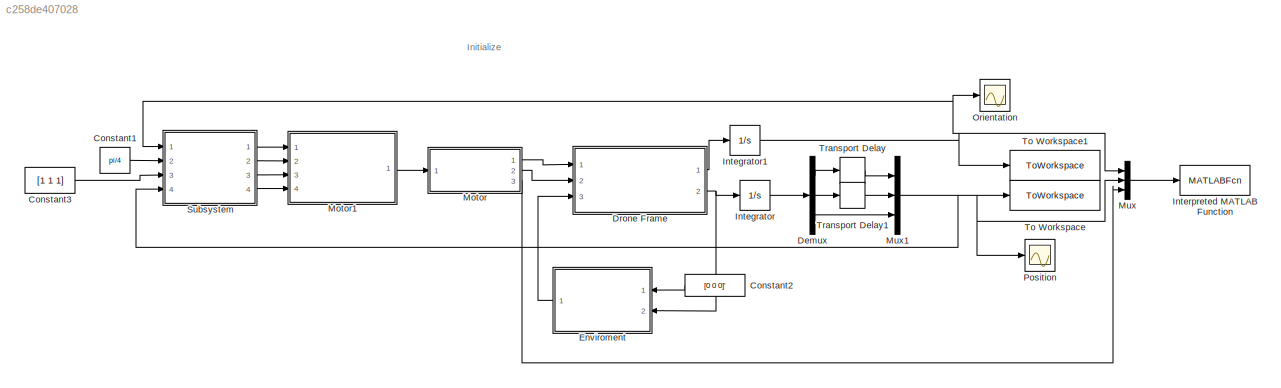
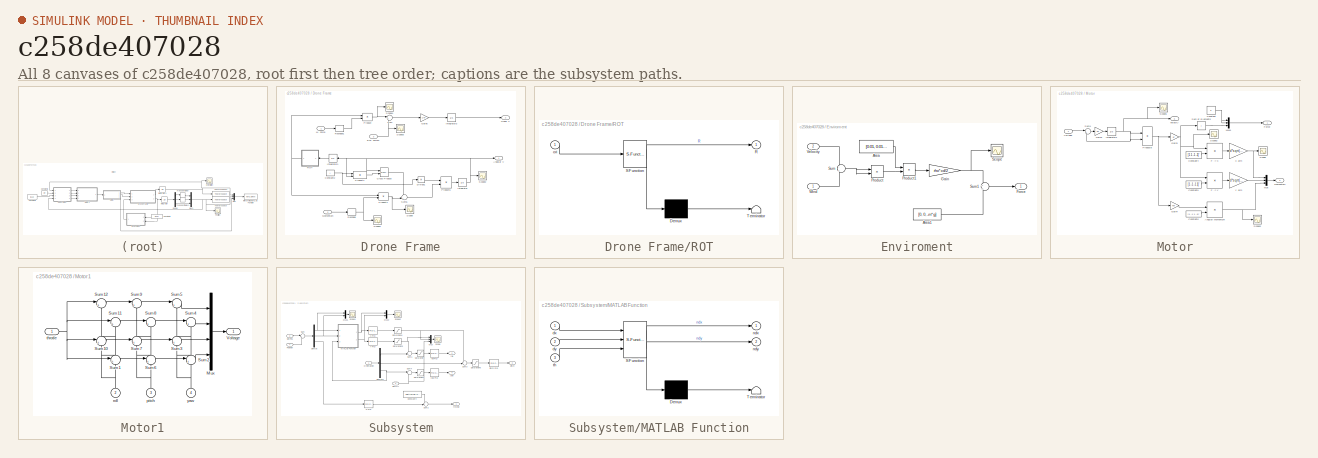
[diagram: thumbnail index - all 8 canvases of the model, root first then tree order]
MODEL slx_c258de407028
KIND model
CONFIG AbsTol = auto
CONFIG EnableMultiTasking = off
CONFIG FixedStep = auto
CONFIG MaxStep = auto
CONFIG MinStep = auto
CONFIG RelTol = 1e-3
CONFIG SampleTimeConstraint = Unconstrained
CONFIG SolverName = VariableStepAuto
CONFIG StartTime = 0.0
CONFIG StopTime = 30
BLOCK [Constant] Constant1
  Value = pi/4
BLOCK [Constant] Constant2
  Value = [0 0 0]'
  VectorParams1D = off
BLOCK [Constant] Constant3
  Value = [1 1 1]
BLOCK [Demux] Demux
  Outputs = 3
  Ports = [1, 3]
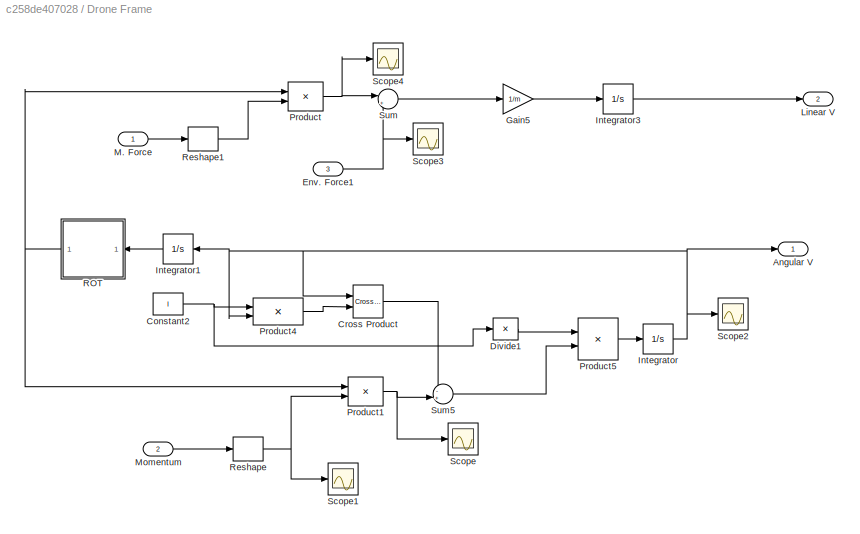
BLOCK [SubSystem] Drone Frame
  Ports = [3, 2]
  RequestExecContextInheritance = off
BLOCK [Outport] Drone Frame/Angular V
BLOCK [Constant] Drone Frame/Constant2
  Value = I
BLOCK [Reference] Drone Frame/Cross Product  REF=vrlib/Utilities/Cross Product
  Ports = [2, 1]
  SourceBlock = vrlib/Utilities/Cross Product
  SourceProductBaseCode = SL
  SourceType = Cross Product
BLOCK [Product] Drone Frame/Divide1
  Inputs = /
  Multiplication = Matrix(*)
  Ports = [1, 1]
BLOCK [Inport] Drone Frame/Env. Force1
  Port = 3
BLOCK [Gain] Drone Frame/Gain5
  Gain = 1/m
BLOCK [Integrator] Drone Frame/Integrator
  Ports = [1, 1]
BLOCK [Integrator] Drone Frame/Integrator1
  Ports = [1, 1]
BLOCK [Integrator] Drone Frame/Integrator3
  Ports = [1, 1]
BLOCK [Outport] Drone Frame/Linear V
  Port = 2
BLOCK [Inport] Drone Frame/M. Force
BLOCK [Inport] Drone Frame/Momentum
  Port = 2
BLOCK [Product] Drone Frame/Product
  Multiplication = Matrix(*)
  Ports = [2, 1]
BLOCK [Product] Drone Frame/Product1
  Multiplication = Matrix(*)
  Ports = [2, 1]
BLOCK [Product] Drone Frame/Product4
  Multiplication = Matrix(*)
  Ports = [2, 1]
BLOCK [Product] Drone Frame/Product5
  Multiplication = Matrix(*)
  Ports = [2, 1]
BLOCK [SubSystem] Drone Frame/ROT
  ErrorFcn = Stateflow.Translate.translate
  PermitHierarchicalResolution = ExplicitOnly
  Ports = [1, 1]
  RequestExecContextInheritance = off
  SFBlockType = MATLAB Function
  TreatAsAtomicUnit = on
BLOCK [Demux] Drone Frame/ROT/ Demux 
  Outputs = 1
  Ports = [1, 1]
BLOCK [S-Function] Drone Frame/ROT/ SFunction 
  EnableBusSupport = on
  FunctionName = sf_sfun
  PortCounts = [1 2]
  Ports = [1, 2]
  SFcnIsStateOwnerBlock = off
  SFunctionDeploymentMode = off
  Tag = Stateflow S-Function 1
BLOCK [Terminator] Drone Frame/ROT/ Terminator 
BLOCK [Outport] Drone Frame/ROT/R
BLOCK [Inport] Drone Frame/ROT/ori
BLOCK [Reshape] Drone Frame/Reshape
  OutputDimensionality = Column vector (2-D)
  Ports = [1, 1]
BLOCK [Reshape] Drone Frame/Reshape1
  OutputDimensionality = Column vector (2-D)
  Ports = [1, 1]
BLOCK [Scope] Drone Frame/Scope
  Floating = off
  NumInputPorts = 1
  Ports = [1]
  ScopeSpecificationString = Simulink.scopes.TimeScopeBlockCfg('CurrentConfiguration', extmgr.ConfigurationSet(extmgr.Configuration('Core','General UI',true),extmgr.Configuration('Core','Source UI',true),extmgr.Configuration('Sources','WiredSimulink',true,'DataLoggingVariableName','ScopeData6'),extmgr.Configuration('Visuals','Time Domain',true,'SerializedDisplays',{struct('MinYLimReal','-1.00000','MaxYLimReal','1.00000','YLab...<+1448ch>
BLOCK [Scope] Drone Frame/Scope1
  Floating = off
  NumInputPorts = 1
  Ports = [1]
  ScopeSpecificationString = Simulink.scopes.TimeScopeBlockCfg('CurrentConfiguration', extmgr.ConfigurationSet(extmgr.Configuration('Core','General UI',true),extmgr.Configuration('Core','Source UI',true),extmgr.Configuration('Sources','WiredSimulink',true,'DataLoggingVariableName','ScopeData7'),extmgr.Configuration('Visuals','Time Domain',true,'SerializedDisplays',{struct('MinYLimReal','-1.00000','MaxYLimReal','1.00000','YLab...<+1420ch>
BLOCK [Scope] Drone Frame/Scope2
  Floating = off
  NumInputPorts = 1
  Ports = [1]
  ScopeSpecificationString = Simulink.scopes.TimeScopeBlockCfg('CurrentConfiguration', extmgr.ConfigurationSet(extmgr.Configuration('Core','General UI',true),extmgr.Configuration('Core','Source UI',true),extmgr.Configuration('Sources','WiredSimulink',true,'DataLoggingVariableName','ScopeData8'),extmgr.Configuration('Visuals','Time Domain',true,'SerializedDisplays',{struct('MinYLimReal','-1.00000','MaxYLimReal','1.00000','YLab...<+1454ch>
BLOCK [Scope] Drone Frame/Scope3
  Floating = off
  NumInputPorts = 1
  Ports = [1]
  ScopeSpecificationString = Simulink.scopes.TimeScopeBlockCfg('CurrentConfiguration', extmgr.ConfigurationSet(extmgr.Configuration('Core','General UI',true),extmgr.Configuration('Core','Source UI',true),extmgr.Configuration('Sources','WiredSimulink',true,'DataLoggingVariableName','ScopeData9'),extmgr.Configuration('Visuals','Time Domain',true,'SerializedDisplays',{struct('MinYLimReal','-16.54017','MaxYLimReal','1.8623','YLab...<+1460ch>
BLOCK [Scope] Drone Frame/Scope4
  Floating = off
  NumInputPorts = 1
  Ports = [1]
  ScopeSpecificationString = Simulink.scopes.TimeScopeBlockCfg('CurrentConfiguration', extmgr.ConfigurationSet(extmgr.Configuration('Core','General UI',true),extmgr.Configuration('Core','Source UI',true),extmgr.Configuration('Sources','WiredSimulink',true,'DataLoggingVariableName','ScopeData10'),extmgr.Configuration('Visuals','Time Domain',true,'SerializedDisplays',{struct('MinYLimReal','-6.25644','MaxYLimReal','56.30799','YL...<+1450ch>
BLOCK [Sum] Drone Frame/Sum
  Inputs = |++
  Ports = [2, 1]
BLOCK [Sum] Drone Frame/Sum5
  Inputs = -+|
  Ports = [2, 1]
BLOCK [SubSystem] Enviroment
  Ports = [2, 1]
  RequestExecContextInheritance = off
BLOCK [Constant] Enviroment/Area
  Value = [0.01, 0.01, 0.01]
BLOCK [Constant] Enviroment/Area1
  Value = [0, 0, -m*g]
BLOCK [Outport] Enviroment/Force
BLOCK [Gain] Enviroment/Gain
  Gain = rho*cd/2
BLOCK [Product] Enviroment/Product
  Ports = [2, 1]
BLOCK [Product] Enviroment/Product1
  Ports = [2, 1]
BLOCK [Scope] Enviroment/Scope
  Floating = off
  NumInputPorts = 1
  Ports = [1]
  ScopeSpecificationString = Simulink.scopes.TimeScopeBlockCfg('CurrentConfiguration', extmgr.ConfigurationSet(extmgr.Configuration('Core','General UI',true),extmgr.Configuration('Core','Source UI',true),extmgr.Configuration('Sources','WiredSimulink',true,'DataLoggingVariableName','ScopeData11'),extmgr.Configuration('Visuals','Time Domain',true,'SerializedDisplays',{struct('MinYLimReal','-0.00006','MaxYLimReal','0.02451','YLa...<+1413ch>
BLOCK [Sum] Enviroment/Sum
  Inputs = -|+
  Ports = [2, 1]
BLOCK [Sum] Enviroment/Sum1
  Inputs = +|+
  Ports = [2, 1]
BLOCK [Inport] Enviroment/Velocity
  Port = 2
BLOCK [Inport] Enviroment/Wind
BLOCK [Integrator] Integrator
  Ports = [1, 1]
BLOCK [Integrator] Integrator1
  Ports = [1, 1]
BLOCK [MATLABFcn] Interpreted MATLAB Function
  MATLABFcn = sendCoppelia(sim, clientID, [u(4) u(5) u(6)], [u(1) u(2) u(3)], [u(7) u(8) u(9) u(10)])
  OutputDimensions = 0
  Ports = [1]
BLOCK [SubSystem] Motor
  Ports = [1, 3]
  RequestExecContextInheritance = off
BLOCK [Product] Motor/Angular Momentum
  Multiplication = Matrix(*)
  Ports = [2, 1]
BLOCK [Constant] Motor/Constant
  Value = 0
BLOCK [Constant] Motor/Constant4
  Value = [1 1 -1 -1]'
  VectorParams1D = off
BLOCK [Constant] Motor/Constant5
  Value = [1 -1 -1 1]'
  VectorParams1D = off
BLOCK [Constant] Motor/Constant6
  Value = [1 -1 1 -1]'
  VectorParams1D = off
BLOCK [Product] Motor/F -> X
  Multiplication = Matrix(*)
  Ports = [2, 1]
BLOCK [Product] Motor/F -> Y
  Multiplication = Matrix(*)
  Ports = [2, 1]
BLOCK [Outport] Motor/Force
BLOCK [Gain] Motor/Gain2
  Gain = 50
BLOCK [Gain] Motor/Gain3
  Gain = Kf
BLOCK [Gain] Motor/Gain4
  Gain = Km
BLOCK [Integrator] Motor/Integrator1
  Ports = [1, 1]
BLOCK [Outport] Motor/Momentum
  Port = 2
BLOCK [Mux] Motor/Mux
  DisplayOption = bar
  Inputs = 3
  Ports = [3, 1]
BLOCK [Mux] Motor/Mux1
  DisplayOption = bar
  Inputs = 3
  Ports = [3, 1]
BLOCK [Product] Motor/Product8
  Ports = [2, 1]
BLOCK [Scope] Motor/Scope
  Floating = off
  NumInputPorts = 1
  Ports = [1]
  ScopeSpecificationString = Simulink.scopes.TimeScopeBlockCfg('CurrentConfiguration', extmgr.ConfigurationSet(extmgr.Configuration('Core','General UI',true),extmgr.Configuration('Core','Source UI',true),extmgr.Configuration('Sources','WiredSimulink',true,'DataLoggingVariableName','ScopeData2'),extmgr.Configuration('Visuals','Time Domain',true,'SerializedDisplays',{struct('MinYLimReal','-0.13353','MaxYLimReal','0.08475','YLab...<+1418ch>
BLOCK [Scope] Motor/Scope1
  Floating = off
  NumInputPorts = 1
  Ports = [1]
  ScopeSpecificationString = Simulink.scopes.TimeScopeBlockCfg('CurrentConfiguration', extmgr.ConfigurationSet(extmgr.Configuration('Core','General UI',true),extmgr.Configuration('Core','Source UI',true),extmgr.Configuration('Sources','WiredSimulink',true,'DataLoggingVariableName','ScopeData1'),extmgr.Configuration('Visuals','Time Domain',true,'SerializedDisplays',{struct('MinYLimReal','-0.93333','MaxYLimReal','8.4','YLabelRe...<+1476ch>
BLOCK [Scope] Motor/Scope2
  Floating = off
  NumInputPorts = 1
  Ports = [1]
  ScopeSpecificationString = Simulink.scopes.TimeScopeBlockCfg('CurrentConfiguration', extmgr.ConfigurationSet(extmgr.Configuration('Core','General UI',true),extmgr.Configuration('Core','Source UI',true),extmgr.Configuration('Sources','WiredSimulink',true,'DataLoggingVariableName','ScopeData4'),extmgr.Configuration('Visuals','Time Domain',true,'SerializedDisplays',{struct('MinYLimReal','-1.56411','MaxYLimReal','14.077','YLabe...<+1445ch>
BLOCK [Scope] Motor/Scope3
  Floating = off
  NumInputPorts = 1
  Ports = [1]
  ScopeSpecificationString = Simulink.scopes.TimeScopeBlockCfg('CurrentConfiguration', extmgr.ConfigurationSet(extmgr.Configuration('Core','General UI',true),extmgr.Configuration('Core','Source UI',true),extmgr.Configuration('Sources','WiredSimulink',true,'DataLoggingVariableName','ScopeData5'),extmgr.Configuration('Visuals','Time Domain',true,'SerializedDisplays',{struct('MinYLimReal','-1.00000','MaxYLimReal','1.00000','YLab...<+1429ch>
BLOCK [Sum] Motor/Sum of Elements
  IconShape = rectangular
  Inputs = +
  Ports = [1, 1]
BLOCK [Sum] Motor/Sum4
  Inputs = |+-
  Ports = [2, 1]
BLOCK [Inport] Motor/Voltage
BLOCK [Gain] Motor/X arm
  Gain = d*sqrt(2)/2
BLOCK [Gain] Motor/Y arm
  Gain = d*sqrt(2)/2
BLOCK [Outport] Motor/velocity
  Port = 3
BLOCK [SubSystem] Motor1
  Ports = [4, 1]
  RequestExecContextInheritance = off
BLOCK [Mux] Motor1/Mux
  DisplayOption = bar
  Ports = [4, 1]
BLOCK [Sum] Motor1/Sum1
  Inputs = |+-
  Ports = [2, 1]
BLOCK [Sum] Motor1/Sum10
  Inputs = |+-
  Ports = [2, 1]
BLOCK [Sum] Motor1/Sum11
  Inputs = |++
  Ports = [2, 1]
BLOCK [Sum] Motor1/Sum12
  Inputs = |++
  Ports = [2, 1]
BLOCK [Sum] Motor1/Sum2
  Inputs = |+-
  Ports = [2, 1]
BLOCK [Sum] Motor1/Sum3
  Inputs = |++
  Ports = [2, 1]
BLOCK [Sum] Motor1/Sum4
  Inputs = |+-
  Ports = [2, 1]
BLOCK [Sum] Motor1/Sum5
  Inputs = |++
  Ports = [2, 1]
BLOCK [Sum] Motor1/Sum6
  Inputs = |++
  Ports = [2, 1]
BLOCK [Sum] Motor1/Sum7
  Inputs = |+-
  Ports = [2, 1]
BLOCK [Sum] Motor1/Sum8
  Inputs = |+-
  Ports = [2, 1]
BLOCK [Sum] Motor1/Sum9
  Inputs = |++
  Ports = [2, 1]
BLOCK [Outport] Motor1/Voltage
BLOCK [Inport] Motor1/pitch
  NameLocation = right
  Port = 3
BLOCK [Inport] Motor1/roll
  NameLocation = right
  Port = 2
BLOCK [Inport] Motor1/throtle
BLOCK [Inport] Motor1/yaw
  NameLocation = right
  Port = 4
BLOCK [Mux] Mux
  DisplayOption = bar
  Inputs = 3
  Ports = [3, 1]
BLOCK [Mux] Mux1
  DisplayOption = bar
  Inputs = 3
  Ports = [3, 1]
BLOCK [Scope] Orientation
  Floating = off
  NumInputPorts = 1
  Ports = [1]
  ScopeSpecificationString = Simulink.scopes.TimeScopeBlockCfg('CurrentConfiguration', extmgr.ConfigurationSet(extmgr.Configuration('Core','General UI',true),extmgr.Configuration('Core','Source UI',true),extmgr.Configuration('Sources','WiredSimulink',true),extmgr.Configuration('Visuals','Time Domain',true,'SerializedDisplays',{struct('MinYLimReal','-0.17956','MaxYLimReal','0.93313','YLabelReal','','MinYLimMag','0.00000','MaxY...<+1462ch>
BLOCK [Scope] Position
  Floating = off
  NumInputPorts = 1
  Ports = [1]
  ScopeSpecificationString = Simulink.scopes.TimeScopeBlockCfg('CurrentConfiguration', extmgr.ConfigurationSet(extmgr.Configuration('Core','General UI',true),extmgr.Configuration('Core','Source UI',true),extmgr.Configuration('Sources','WiredSimulink',true,'DataLoggingVariableName','ScopeData1'),extmgr.Configuration('Visuals','Time Domain',true,'SerializedDisplays',{struct('MinYLimReal','-3.56217','MaxYLimReal','4.29402','YLab...<+1542ch>
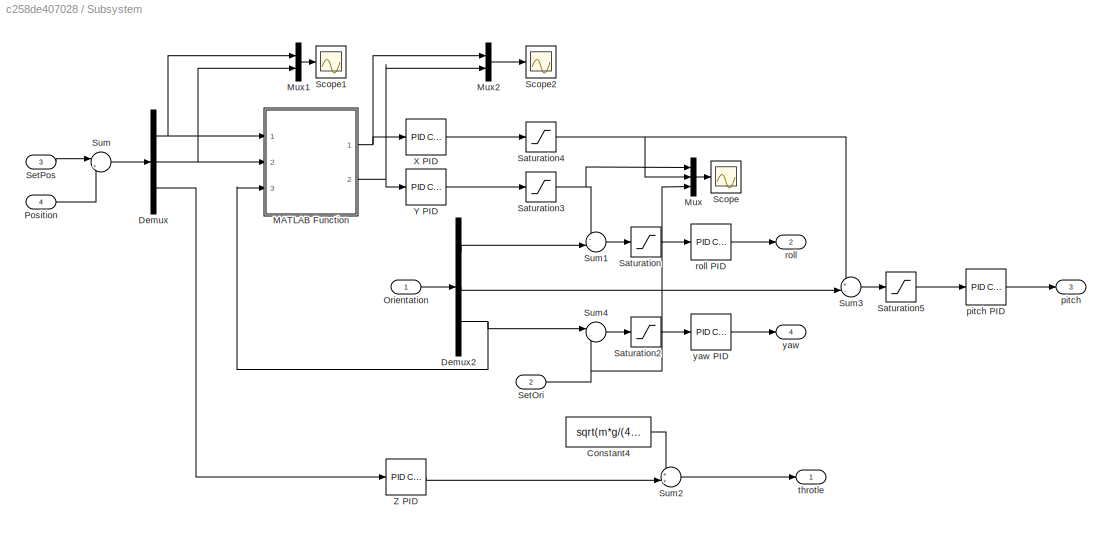
BLOCK [SubSystem] Subsystem
  Ports = [4, 4]
  RequestExecContextInheritance = off
BLOCK [Constant] Subsystem/Constant4
  Value = sqrt(m*g/(4*Kf))
BLOCK [Demux] Subsystem/Demux
  Outputs = 3
  Ports = [1, 3]
BLOCK [Demux] Subsystem/Demux2
  Outputs = 3
  Ports = [1, 3]
BLOCK [SubSystem] Subsystem/MATLAB Function
  ErrorFcn = Stateflow.Translate.translate
  PermitHierarchicalResolution = ExplicitOnly
  Ports = [3, 2]
  RequestExecContextInheritance = off
  SFBlockType = MATLAB Function
  TreatAsAtomicUnit = on
BLOCK [Demux] Subsystem/MATLAB Function/ Demux 
  Outputs = 1
  Ports = [1, 1]
BLOCK [S-Function] Subsystem/MATLAB Function/ SFunction 
  EnableBusSupport = on
  FunctionName = sf_sfun
  PortCounts = [3 3]
  Ports = [3, 3]
  SFcnIsStateOwnerBlock = off
  SFunctionDeploymentMode = off
  Tag = Stateflow S-Function 2
BLOCK [Terminator] Subsystem/MATLAB Function/ Terminator 
BLOCK [Inport] Subsystem/MATLAB Function/dx
BLOCK [Inport] Subsystem/MATLAB Function/dy
  Port = 2
BLOCK [Outport] Subsystem/MATLAB Function/ndx
BLOCK [Outport] Subsystem/MATLAB Function/ndy
  Port = 2
BLOCK [Inport] Subsystem/MATLAB Function/th
  Port = 3
BLOCK [Mux] Subsystem/Mux
  DisplayOption = bar
  Inputs = 3
  Ports = [3, 1]
BLOCK [Mux] Subsystem/Mux1
  DisplayOption = bar
  Inputs = 2
  Ports = [2, 1]
BLOCK [Mux] Subsystem/Mux2
  DisplayOption = bar
  Inputs = 2
  Ports = [2, 1]
BLOCK [Inport] Subsystem/Orientation
BLOCK [Inport] Subsystem/Position
  Port = 4
BLOCK [Saturate] Subsystem/Saturation
  LowerLimit = -0.01
  UpperLimit = 0.01
BLOCK [Saturate] Subsystem/Saturation2
  LowerLimit = -0.01
  UpperLimit = 0.01
BLOCK [Saturate] Subsystem/Saturation3
  LowerLimit = -0.05
  UpperLimit = 0.05
BLOCK [Saturate] Subsystem/Saturation4
  LowerLimit = -0.05
  UpperLimit = 0.05
BLOCK [Saturate] Subsystem/Saturation5
  LowerLimit = -0.01
  UpperLimit = 0.01
BLOCK [Scope] Subsystem/Scope
  Floating = off
  NumInputPorts = 1
  Ports = [1]
  ScopeSpecificationString = Simulink.scopes.TimeScopeBlockCfg('CurrentConfiguration', extmgr.ConfigurationSet(extmgr.Configuration('Core','General UI',true),extmgr.Configuration('Core','Source UI',true),extmgr.Configuration('Sources','WiredSimulink',true,'DataLoggingVariableName','ScopeData1'),extmgr.Configuration('Visuals','Time Domain',true,'SerializedDisplays',{struct('MinYLimReal','-0.04192','MaxYLimReal','0.87732','YLab...<+1422ch>
BLOCK [Scope] Subsystem/Scope1
  Floating = off
  NumInputPorts = 1
  Ports = [1]
  ScopeSpecificationString = Simulink.scopes.TimeScopeBlockCfg('CurrentConfiguration', extmgr.ConfigurationSet(extmgr.Configuration('Core','General UI',true),extmgr.Configuration('Core','Source UI',true),extmgr.Configuration('Sources','WiredSimulink',true,'DataLoggingVariableName','ScopeData2'),extmgr.Configuration('Visuals','Time Domain',true,'SerializedDisplays',{struct('MinYLimReal','-0.12607','MaxYLimReal','1.12512','YLab...<+1448ch>
BLOCK [Scope] Subsystem/Scope2
  Floating = off
  NumInputPorts = 1
  Ports = [1]
  ScopeSpecificationString = Simulink.scopes.TimeScopeBlockCfg('CurrentConfiguration', extmgr.ConfigurationSet(extmgr.Configuration('Core','General UI',true),extmgr.Configuration('Core','Source UI',true),extmgr.Configuration('Sources','WiredSimulink',true,'DataLoggingVariableName','ScopeData3'),extmgr.Configuration('Visuals','Time Domain',true,'SerializedDisplays',{struct('MinYLimReal','-0.13551','MaxYLimReal','1.21721','YLab...<+1428ch>
BLOCK [Inport] Subsystem/SetOri
  Port = 2
BLOCK [Inport] Subsystem/SetPos
  Port = 3
BLOCK [Sum] Subsystem/Sum
  Inputs = |+-
  Ports = [2, 1]
BLOCK [Sum] Subsystem/Sum1
  Inputs = --|
  Ports = [2, 1]
BLOCK [Sum] Subsystem/Sum2
  Inputs = ++|
  Ports = [2, 1]
BLOCK [Sum] Subsystem/Sum3
  Inputs = +-|
  Ports = [2, 1]
BLOCK [Sum] Subsystem/Sum4
  Inputs = |-+
  Ports = [2, 1]
BLOCK [Reference] Subsystem/X PID  REF=pid_lib/PID Controller
  Ports = [1, 1]
  SourceBlock = pid_lib/PID Controller
  SourceProductBaseCode = SL
  SourceType = PID 1dof
BLOCK [Reference] Subsystem/Y PID  REF=pid_lib/PID Controller
  Ports = [1, 1]
  SourceBlock = pid_lib/PID Controller
  SourceProductBaseCode = SL
  SourceType = PID 1dof
BLOCK [Reference] Subsystem/Z PID  REF=pid_lib/PID Controller
  Ports = [1, 1]
  SourceBlock = pid_lib/PID Controller
  SourceProductBaseCode = SL
  SourceType = PID 1dof
BLOCK [Outport] Subsystem/pitch
  Port = 3
BLOCK [Reference] Subsystem/pitch PID  REF=pid_lib/PID Controller
  Ports = [1, 1]
  SourceBlock = pid_lib/PID Controller
  SourceProductBaseCode = SL
  SourceType = PID 1dof
BLOCK [Outport] Subsystem/roll
  Port = 2
BLOCK [Reference] Subsystem/roll PID  REF=pid_lib/PID Controller
  Ports = [1, 1]
  SourceBlock = pid_lib/PID Controller
  SourceProductBaseCode = SL
  SourceType = PID 1dof
BLOCK [Outport] Subsystem/throtle
BLOCK [Outport] Subsystem/yaw
  Port = 4
BLOCK [Reference] Subsystem/yaw PID  REF=pid_lib/PID Controller
  Ports = [1, 1]
  SourceBlock = pid_lib/PID Controller
  SourceProductBaseCode = SL
  SourceType = PID 1dof
BLOCK [ToWorkspace] To Workspace
  FixptAsFi = on
  MaxDataPoints = inf
  Ports = [1]
  SampleTime = -1
  SaveFormat = Timeseries
  VariableName = xyz
BLOCK [ToWorkspace] To Workspace1
  FixptAsFi = on
  MaxDataPoints = inf
  Ports = [1]
  SampleTime = -1
  SaveFormat = Timeseries
  VariableName = euler
BLOCK [TransportDelay] Transport Delay
  DelayTime = 2
  Ports = [1, 1]
BLOCK [TransportDelay] Transport Delay1
  DelayTime = 2
  Ports = [1, 1]
ANNOTATION (root): Initialize
LINE Constant1:1 -> Subsystem:2
LINE Constant2:1 -> Enviroment:1
LINE Constant3:1 -> Subsystem:3
LINE Demux:1 -> Transport Delay:1
LINE Demux:2 -> Transport Delay1:1
LINE Demux:3 -> Mux1:3
NET Drone Frame/Constant2:1 -> Drone Frame/Divide1:1, Drone Frame/Product4:1
LINE Drone Frame/Cross Product:1 -> Drone Frame/Sum5:1
LINE Drone Frame/Divide1:1 -> Drone Frame/Product5:1
NET Drone Frame/Env. Force1:1 -> Drone Frame/Scope3:1, Drone Frame/Sum:2
LINE Drone Frame/Gain5:1 -> Drone Frame/Integrator3:1
LINE Drone Frame/Integrator1:1 -> Drone Frame/ROT:1
LINE Drone Frame/Integrator3:1 -> Drone Frame/Linear V:1
NET Drone Frame/Integrator:1 -> Drone Frame/Angular V:1, Drone Frame/Cross Product:1, Drone Frame/Integrator1:1, Drone Frame/Product4:2, Drone Frame/Scope2:1
LINE Drone Frame/M. Force:1 -> Drone Frame/Reshape1:1
LINE Drone Frame/Momentum:1 -> Drone Frame/Reshape:1
NET Drone Frame/Product1:1 -> Drone Frame/Scope:1, Drone Frame/Sum5:2
LINE Drone Frame/Product4:1 -> Drone Frame/Cross Product:2
LINE Drone Frame/Product5:1 -> Drone Frame/Integrator:1
NET Drone Frame/Product:1 -> Drone Frame/Scope4:1, Drone Frame/Sum:1
NET Drone Frame/ROT:1 -> Drone Frame/Product1:1, Drone Frame/Product:1
LINE Drone Frame/Reshape1:1 -> Drone Frame/Product:2
NET Drone Frame/Reshape:1 -> Drone Frame/Product1:2, Drone Frame/Scope1:1
LINE Drone Frame/Sum5:1 -> Drone Frame/Product5:2
LINE Drone Frame/Sum:1 -> Drone Frame/Gain5:1
LINE Drone Frame:1 -> Integrator1:1
NET Drone Frame:2 -> Enviroment:2, Integrator:1
LINE Enviroment/Area1:1 -> Enviroment/Sum1:2
LINE Enviroment/Area:1 -> Enviroment/Product1:1
NET Enviroment/Gain:1 -> Enviroment/Scope:1, Enviroment/Sum1:1
LINE Enviroment/Product1:1 -> Enviroment/Gain:1
LINE Enviroment/Product:1 -> Enviroment/Product1:2
LINE Enviroment/Sum1:1 -> Enviroment/Force:1
NET Enviroment/Sum:1 -> Enviroment/Product:1, Enviroment/Product:2
LINE Enviroment/Velocity:1 -> Enviroment/Sum:1
LINE Enviroment/Wind:1 -> Enviroment/Sum:2
LINE Enviroment:1 -> Drone Frame:3
NET Integrator1:1 -> Mux:1, Orientation:1, Subsystem:1, To Workspace1:1
LINE Integrator:1 -> Demux:1
NET Motor/Angular Momentum:1 -> Motor/Mux:3, Motor/Scope3:1
LINE Motor/Constant4:1 -> Motor/F -> X:2
LINE Motor/Constant5:1 -> Motor/F -> Y:2
LINE Motor/Constant6:1 -> Motor/Angular Momentum:2
NET Motor/Constant:1 -> Motor/Mux1:1, Motor/Mux1:2
LINE Motor/F -> X:1 -> Motor/X arm:1
LINE Motor/F -> Y:1 -> Motor/Y arm:1
LINE Motor/Gain2:1 -> Motor/Integrator1:1
NET Motor/Gain3:1 -> Motor/F -> X:1, Motor/F -> Y:1, Motor/Scope2:1, Motor/Sum of Elements:1
LINE Motor/Gain4:1 -> Motor/Angular Momentum:1
NET Motor/Integrator1:1 -> Motor/Product8:1, Motor/Product8:2, Motor/Scope1:1, Motor/Sum4:2, Motor/velocity:1
LINE Motor/Mux1:1 -> Motor/Force:1
LINE Motor/Mux:1 -> Motor/Momentum:1
NET Motor/Product8:1 -> Motor/Gain3:1, Motor/Gain4:1
LINE Motor/Sum of Elements:1 -> Motor/Mux1:3
LINE Motor/Sum4:1 -> Motor/Gain2:1
LINE Motor/Voltage:1 -> Motor/Sum4:1
NET Motor/X arm:1 -> Motor/Mux:1, Motor/Scope:1
LINE Motor/Y arm:1 -> Motor/Mux:2
LINE Motor1/Mux:1 -> Motor1/Voltage:1
LINE Motor1/Sum10:1 -> Motor1/Sum7:1
LINE Motor1/Sum11:1 -> Motor1/Sum8:1
LINE Motor1/Sum12:1 -> Motor1/Sum9:1
LINE Motor1/Sum1:1 -> Motor1/Sum6:1
LINE Motor1/Sum2:1 -> Motor1/Mux:4
LINE Motor1/Sum3:1 -> Motor1/Mux:3
LINE Motor1/Sum4:1 -> Motor1/Mux:2
LINE Motor1/Sum5:1 -> Motor1/Mux:1
LINE Motor1/Sum6:1 -> Motor1/Sum2:1
LINE Motor1/Sum7:1 -> Motor1/Sum3:1
LINE Motor1/Sum8:1 -> Motor1/Sum4:1
LINE Motor1/Sum9:1 -> Motor1/Sum5:1
NET Motor1/pitch:1 -> Motor1/Sum6:2, Motor1/Sum7:2, Motor1/Sum8:2, Motor1/Sum9:2
NET Motor1/roll:1 -> Motor1/Sum10:2, Motor1/Sum11:2, Motor1/Sum12:2, Motor1/Sum1:2
NET Motor1/throtle:1 -> Motor1/Sum10:1, Motor1/Sum11:1, Motor1/Sum12:1, Motor1/Sum1:1
NET Motor1/yaw:1 -> Motor1/Sum2:2, Motor1/Sum3:2, Motor1/Sum4:2, Motor1/Sum5:2
LINE Motor1:1 -> Motor:1
LINE Motor:1 -> Drone Frame:1
LINE Motor:2 -> Drone Frame:2
LINE Motor:3 -> Mux:3
NET Mux1:1 -> Mux:2, Position:1, Subsystem:4, To Workspace:1
LINE Mux:1 -> Interpreted MATLAB Function:1
LINE Subsystem/Constant4:1 -> Subsystem/Sum2:1
LINE Subsystem/Demux2:1 -> Subsystem/Sum1:2
LINE Subsystem/Demux2:2 -> Subsystem/Sum3:2
NET Subsystem/Demux2:3 -> Subsystem/MATLAB Function:3, Subsystem/Sum4:1
NET Subsystem/Demux:1 -> Subsystem/MATLAB Function:1, Subsystem/Mux1:1
NET Subsystem/Demux:2 -> Subsystem/MATLAB Function:2, Subsystem/Mux1:2
LINE Subsystem/Demux:3 -> Subsystem/Z PID:1
NET Subsystem/MATLAB Function:1 -> Subsystem/Mux2:1, Subsystem/X PID:1
NET Subsystem/MATLAB Function:2 -> Subsystem/Mux2:2, Subsystem/Y PID:1
LINE Subsystem/Mux1:1 -> Subsystem/Scope1:1
LINE Subsystem/Mux2:1 -> Subsystem/Scope2:1
LINE Subsystem/Mux:1 -> Subsystem/Scope:1
LINE Subsystem/Orientation:1 -> Subsystem/Demux2:1
LINE Subsystem/Position:1 -> Subsystem/Sum:2
LINE Subsystem/Saturation2:1 -> Subsystem/yaw PID:1
NET Subsystem/Saturation3:1 -> Subsystem/Mux:1, Subsystem/Sum1:1
NET Subsystem/Saturation4:1 -> Subsystem/Mux:2, Subsystem/Sum3:1
LINE Subsystem/Saturation5:1 -> Subsystem/pitch PID:1
LINE Subsystem/Saturation:1 -> Subsystem/roll PID:1
NET Subsystem/SetOri:1 -> Subsystem/Mux:3, Subsystem/Sum4:2
LINE Subsystem/SetPos:1 -> Subsystem/Sum:1
LINE Subsystem/Sum1:1 -> Subsystem/Saturation:1
LINE Subsystem/Sum2:1 -> Subsystem/throtle:1
LINE Subsystem/Sum3:1 -> Subsystem/Saturation5:1
LINE Subsystem/Sum4:1 -> Subsystem/Saturation2:1
LINE Subsystem/Sum:1 -> Subsystem/Demux:1
LINE Subsystem/X PID:1 -> Subsystem/Saturation4:1
LINE Subsystem/Y PID:1 -> Subsystem/Saturation3:1
LINE Subsystem/Z PID:1 -> Subsystem/Sum2:2
LINE Subsystem/pitch PID:1 -> Subsystem/pitch:1
LINE Subsystem/roll PID:1 -> Subsystem/roll:1
LINE Subsystem/yaw PID:1 -> Subsystem/yaw:1
LINE Subsystem:1 -> Motor1:1
LINE Subsystem:2 -> Motor1:2
LINE Subsystem:3 -> Motor1:3
LINE Subsystem:4 -> Motor1:4
LINE Transport Delay1:1 -> Mux1:2
LINE Transport Delay:1 -> Mux1:1
note: NET lines group one-source signal fan-out (src -> all destinations, sorted); 1:1 wires keep LINE
CHART Drone Frame/ROT states=1 transitions=1
  STATE_LABEL 'eML_blk_kernel()'
  STATE_LABEL 'SCRIPT:\nfunction R = rot(ori)\n    roll = ori(1); pitch = ori(2) ; yaw = ori(3);\n    R = [ cos(pitch)*cos(yaw) - sin(pitch)*sin(roll)*sin(yaw), -cos(roll)*sin(yaw), cos(yaw)*sin(pitch) + cos(pitch)*sin(roll)*sin(yaw); ...\n          cos(pitch)*sin(yaw) + cos(yaw)*sin(pitch)*sin(roll),  cos(roll)*cos(yaw), sin(pitch)*sin(yaw) - cos(pitch)*cos(yaw)*sin(roll); ...\n                                      ...<+103ch>'
CHART Subsystem/MATLAB Function states=1 transitions=1
  STATE_LABEL 'eML_blk_kernel()'
  STATE_LABEL 'SCRIPT:\nfunction [ndx,ndy] = rotate(dx, dy, th)\n  alpha = atan2(dy,dx);\n  r = sqrt(dx*dx+ dy*dy);\n  ndx = r*cos(alpha-th);\n  ndy = r*sin(alpha-th);\nend\n'
CHART  states=0 transitions=0
CHART  states=0 transitions=0
